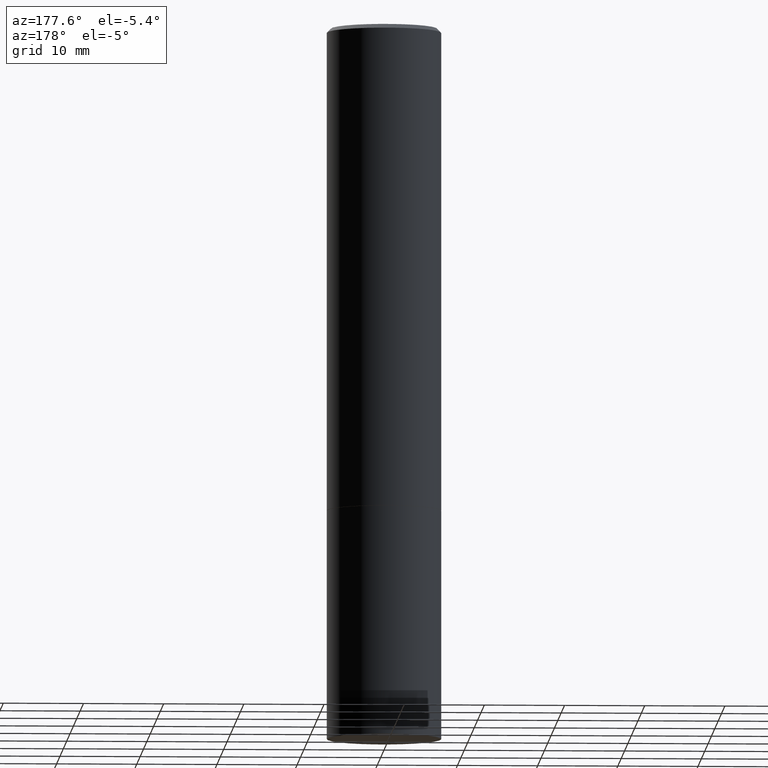
[diagram: clean part render]
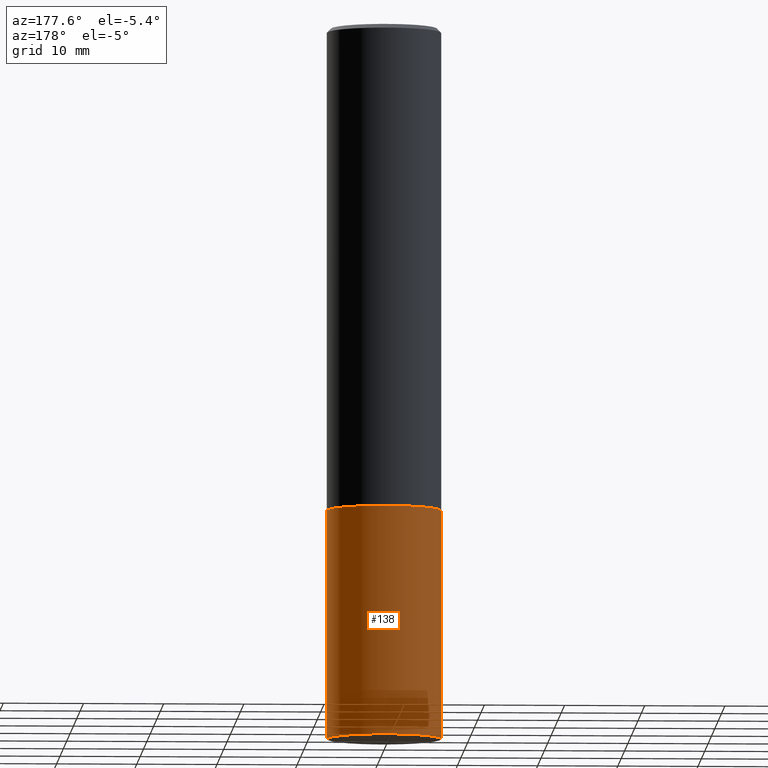
[diagram: same view with one face highlighted and labeled with its STEP entity id]
A machine part, auxiliary view. The second image highlights one B-rep face of the part: STEP entity #138.
In plain terms, the highlighted cylindrical surface (partial cylindrical patch) has radius 7.1437 mm, axis along (-0, 0, 1).
Its self-contained STEP definition (entity closure, byte-faithful):
#6 = DIRECTION ( 'NONE',  ( -2.445468806185136597E-29, 3.491481338843145583E-15, 1.000000000000000000 ) ) ;
#19 = VERTEX_POINT ( 'NONE', #61 ) ;
#54 = DIRECTION ( 'NONE',  ( -2.445468806185136877E-29, 3.491481338843145188E-15, 1.000000000000000000 ) ) ;
#55 = VERTEX_POINT ( 'NONE', #242 ) ;
#57 = EDGE_CURVE ( 'NONE', #233, #101, #298, .T. ) ;
#61 = CARTESIAN_POINT ( 'NONE',  ( -0.2812500000000000000, -8.257824988526457957E-15, -2.374999999999999556 ) ) ;
#69 = CARTESIAN_POINT ( 'NONE',  ( 0.2812500000000000000, -1.963958253099262512E-15, 1.371424718192607012E-29 ) ) ;
#82 = AXIS2_PLACEMENT_3D ( 'NONE', #160, #339, #305 ) ;
#84 = CARTESIAN_POINT ( 'NONE',  ( 0.2812499999999998890, -1.414969974782425102E-14, -3.500000000000000000 ) ) ;
#87 = EDGE_LOOP ( 'NONE', ( #300, #170, #197, #345 ) ) ;
#90 = CARTESIAN_POINT ( 'NONE',  ( -0.2812500000000000000, 1.998401444325281773E-15, -1.383450494134192269E-29 ) ) ;
#101 = VERTEX_POINT ( 'NONE', #120 ) ;
#120 = CARTESIAN_POINT ( 'NONE',  ( -0.2812499999999998890, -1.025622643285174762E-14, -3.500000000000000000 ) ) ;
#126 = DIRECTION ( 'NONE',  ( 1.000000000000000000, -6.982962677686269866E-15, 0.000000000000000000 ) ) ;
#138 = ADVANCED_FACE ( 'NONE', ( #193 ), #367, .T. ) ;
#147 = AXIS2_PLACEMENT_3D ( 'NONE', #153, #6, #126 ) ;
#152 = EDGE_CURVE ( 'NONE', #101, #19, #296, .T. ) ;
#153 = CARTESIAN_POINT ( 'NONE',  ( 8.559140821647976968E-29, -1.222018468595100934E-14, -3.500000000000000000 ) ) ;
#160 = CARTESIAN_POINT ( 'NONE',  ( 5.807988414689698296E-29, -8.292268179752468540E-15, -2.374999999999999556 ) ) ;
#170 = ORIENTED_EDGE ( 'NONE', *, *, #152, .T. ) ;
#173 = VECTOR ( 'NONE', #54, 39.37007874015748143 ) ;
#177 = CARTESIAN_POINT ( 'NONE',  ( 0.000000000000000000, 0.000000000000000000, 0.000000000000000000 ) ) ;
#193 = FACE_OUTER_BOUND ( 'NONE', #87, .T. ) ;
#197 = ORIENTED_EDGE ( 'NONE', *, *, #295, .F. ) ;
#202 = VECTOR ( 'NONE', #214, 39.37007874015748143 ) ;
#214 = DIRECTION ( 'NONE',  ( -2.445468806185136877E-29, 3.491481338843145188E-15, 1.000000000000000000 ) ) ;
#218 = CIRCLE ( 'NONE', #82, 0.2812500000000000000 ) ;
#233 = VERTEX_POINT ( 'NONE', #84 ) ;
#242 = CARTESIAN_POINT ( 'NONE',  ( 0.2812500000000000000, -1.025622643285173184E-14, -2.374999999999999556 ) ) ;
#270 = DIRECTION ( 'NONE',  ( -2.445468806185136597E-29, 3.491481338843145583E-15, 1.000000000000000000 ) ) ;
#279 = LINE ( 'NONE', #69, #202 ) ;
#289 = EDGE_CURVE ( 'NONE', #233, #55, #279, .T. ) ;
#295 = EDGE_CURVE ( 'NONE', #55, #19, #218, .T. ) ;
#296 = LINE ( 'NONE', #90, #173 ) ;
#298 = CIRCLE ( 'NONE', #147, 0.2812500000000000000 ) ;
#300 = ORIENTED_EDGE ( 'NONE', *, *, #57, .T. ) ;
#303 = DIRECTION ( 'NONE',  ( 1.000000000000000000, -6.982962677686266711E-15, 4.876176775795935793E-29 ) ) ;
#305 = DIRECTION ( 'NONE',  ( 1.000000000000000000, -6.982962677686266711E-15, 0.000000000000000000 ) ) ;
#308 = AXIS2_PLACEMENT_3D ( 'NONE', #177, #270, #303 ) ;
#339 = DIRECTION ( 'NONE',  ( -2.445468806185136597E-29, 3.491481338843145583E-15, 1.000000000000000000 ) ) ;
#345 = ORIENTED_EDGE ( 'NONE', *, *, #289, .F. ) ;
#367 = CYLINDRICAL_SURFACE ( 'NONE', #308, 0.2812500000000000000 ) ;